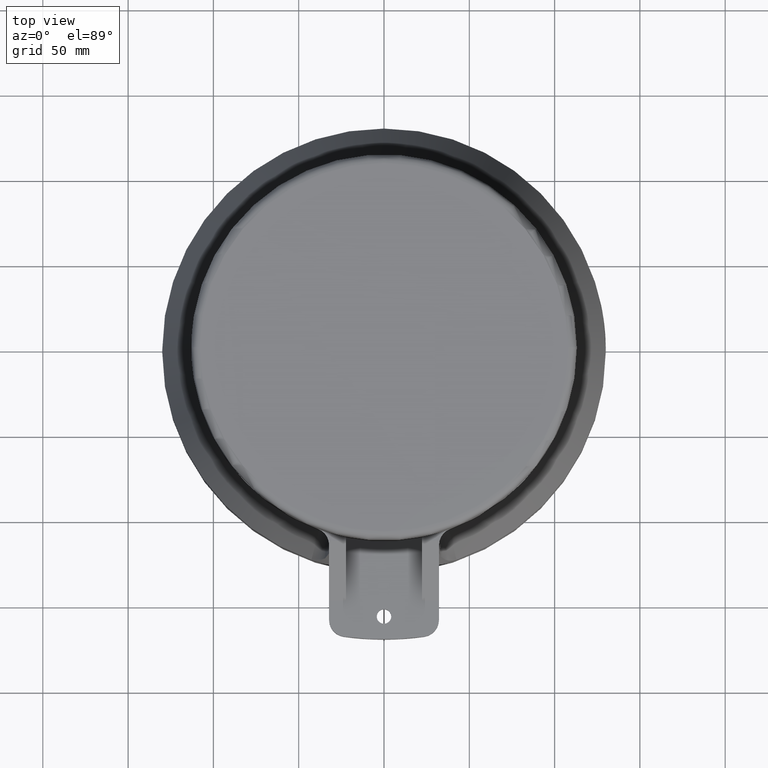
[diagram: clean part render]
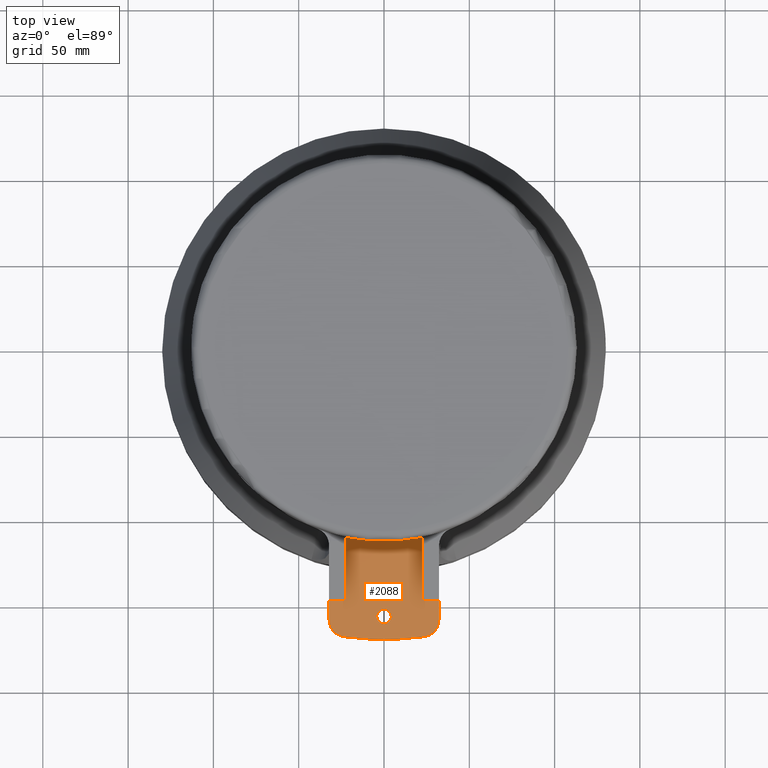
[diagram: same view with one face highlighted and labeled with its STEP entity id]
A machine part, top view. The second image highlights one B-rep face of the part: STEP entity #2088.
In plain terms, the highlighted planar face has unit normal (0, 0, -1).
Its self-contained STEP definition (entity closure, byte-faithful):
#674=CARTESIAN_POINT('',(0.E0,0.E0,-5.2E1));
#675=DIRECTION('',(0.E0,0.E0,1.E0));
#676=DIRECTION('',(-1.383440654598E-1,-9.903842282428E-1,0.E0));
#677=AXIS2_PLACEMENT_3D('',#674,#675,#676);
#705=CARTESIAN_POINT('',(-2.220422250630E1,-1.589566686330E2,-5.2E1));
#706=DIRECTION('',(0.E0,0.E0,1.E0));
#707=DIRECTION('',(-1.E0,0.E0,0.E0));
#708=AXIS2_PLACEMENT_3D('',#705,#706,#707);
#710=DIRECTION('',(0.E0,-1.E0,0.E0));
#711=VECTOR('',#710,1.131565248159E1);
#712=CARTESIAN_POINT('',(-3.220422250630E1,-1.476410161514E2,-5.2E1));
#713=LINE('',#712,#711);
#714=DIRECTION('',(-1.E0,0.E0,0.E0));
#715=VECTOR('',#714,1.E1);
#716=CARTESIAN_POINT('',(-2.220422250630E1,-1.476410161514E2,-5.2E1));
#717=LINE('',#716,#715);
#718=DIRECTION('',(1.E0,0.E0,0.E0));
#719=VECTOR('',#718,1.E1);
#720=CARTESIAN_POINT('',(2.220422250630E1,-1.476410161514E2,-5.2E1));
#721=LINE('',#720,#719);
#722=DIRECTION('',(0.E0,1.E0,0.E0));
#723=VECTOR('',#722,1.131565248159E1);
#724=CARTESIAN_POINT('',(3.220422250630E1,-1.589566686330E2,-5.2E1));
#725=LINE('',#724,#723);
#726=CARTESIAN_POINT('',(2.220422250630E1,-1.589566686330E2,-5.2E1));
#727=DIRECTION('',(0.E0,0.E0,1.E0));
#728=DIRECTION('',(1.383440654598E-1,-9.903842282428E-1,0.E0));
#729=AXIS2_PLACEMENT_3D('',#726,#727,#728);
#731=CARTESIAN_POINT('',(0.E0,-1.57E2,-5.2E1));
#732=DIRECTION('',(0.E0,0.E0,-1.E0));
#733=DIRECTION('',(-1.E0,0.E0,0.E0));
#734=AXIS2_PLACEMENT_3D('',#731,#732,#733);
#736=CARTESIAN_POINT('',(0.E0,-1.57E2,-5.2E1));
#737=DIRECTION('',(0.E0,0.E0,-1.E0));
#738=DIRECTION('',(1.E0,0.E0,0.E0));
#739=AXIS2_PLACEMENT_3D('',#736,#737,#738);
#905=CARTESIAN_POINT('',(0.E0,0.E0,-5.2E1));
#906=DIRECTION('',(0.E0,0.E0,1.E0));
#907=DIRECTION('',(-1.964975443036E-1,-9.805043167078E-1,0.E0));
#908=AXIS2_PLACEMENT_3D('',#905,#906,#907);
#1385=DIRECTION('',(0.E0,1.E0,0.E0));
#1386=VECTOR('',#1385,3.684402836339E1);
#1387=CARTESIAN_POINT('',(2.220422250630E1,-1.476410161514E2,-5.2E1));
#1388=LINE('',#1387,#1386);
#1411=DIRECTION('',(0.E0,-1.E0,0.E0));
#1412=VECTOR('',#1411,3.684402836339E1);
#1413=CARTESIAN_POINT('',(-2.220422250630E1,-1.107969877880E2,-5.2E1));
#1414=LINE('',#1413,#1412);
#1595=CARTESIAN_POINT('',(-2.220422250630E1,-1.476410161514E2,-5.2E1));
#1596=CARTESIAN_POINT('',(-3.220422250630E1,-1.476410161514E2,-5.2E1));
#1597=VERTEX_POINT('',#1595);
#1598=VERTEX_POINT('',#1596);
#1599=CARTESIAN_POINT('',(2.220422250630E1,-1.476410161514E2,-5.2E1));
#1600=CARTESIAN_POINT('',(3.220422250630E1,-1.476410161514E2,-5.2E1));
#1601=VERTEX_POINT('',#1599);
#1602=VERTEX_POINT('',#1600);
#1603=CARTESIAN_POINT('',(-2.220422250630E1,-1.107969877880E2,-5.2E1));
#1605=VERTEX_POINT('',#1603);
#1607=CARTESIAN_POINT('',(2.220422250630E1,-1.107969877880E2,-5.2E1));
#1609=VERTEX_POINT('',#1607);
#1656=CARTESIAN_POINT('',(-3.220422250630E1,-1.589566686330E2,-5.2E1));
#1657=VERTEX_POINT('',#1656);
#1658=CARTESIAN_POINT('',(-2.358766316090E1,-1.688605109154E2,-5.2E1));
#1659=VERTEX_POINT('',#1658);
#1660=CARTESIAN_POINT('',(2.358766316090E1,-1.688605109154E2,-5.2E1));
#1661=CARTESIAN_POINT('',(3.220422250630E1,-1.589566686330E2,-5.2E1));
#1662=VERTEX_POINT('',#1660);
#1663=VERTEX_POINT('',#1661);
#1680=CARTESIAN_POINT('',(-4.25E0,-1.57E2,-5.2E1));
#1681=CARTESIAN_POINT('',(4.25E0,-1.57E2,-5.2E1));
#1682=VERTEX_POINT('',#1680);
#1683=VERTEX_POINT('',#1681);
#2058=CARTESIAN_POINT('',(0.E0,0.E0,-5.2E1));
#2059=DIRECTION('',(0.E0,0.E0,-1.E0));
#2060=DIRECTION('',(-2.588190451025E-1,-9.659258262891E-1,0.E0));
#2061=AXIS2_PLACEMENT_3D('',#2058,#2059,#2060);
#2062=PLANE('',#2061);
#2064=ORIENTED_EDGE('',*,*,#2063,.F.);
#2065=ORIENTED_EDGE('',*,*,#1963,.F.);
#2067=ORIENTED_EDGE('',*,*,#2066,.F.);
#2069=ORIENTED_EDGE('',*,*,#2068,.F.);
#2071=ORIENTED_EDGE('',*,*,#2070,.T.);
#2073=ORIENTED_EDGE('',*,*,#2072,.F.);
#2075=ORIENTED_EDGE('',*,*,#2074,.T.);
#2077=ORIENTED_EDGE('',*,*,#2076,.F.);
#2079=ORIENTED_EDGE('',*,*,#2078,.F.);
#2080=ORIENTED_EDGE('',*,*,#2018,.F.);
#2081=EDGE_LOOP('',(#2064,#2065,#2067,#2069,#2071,#2073,#2075,#2077,#2079,
#2080));
#2082=FACE_OUTER_BOUND('',#2081,.F.);
#2083=ORIENTED_EDGE('',*,*,#2048,.F.);
#2085=ORIENTED_EDGE('',*,*,#2084,.F.);
#2086=EDGE_LOOP('',(#2083,#2085));
#2087=FACE_BOUND('',#2086,.F.);
#678=CIRCLE('',#677,1.705E2);
#709=CIRCLE('',#708,1.E1);
#730=CIRCLE('',#729,1.E1);
#735=CIRCLE('',#734,4.25E0);
#740=CIRCLE('',#739,4.25E0);
#909=CIRCLE('',#908,1.13E2);
#1963=EDGE_CURVE('',#1598,#1657,#713,.T.);
#2018=EDGE_CURVE('',#1659,#1662,#678,.T.);
#2048=EDGE_CURVE('',#1682,#1683,#735,.T.);
#2063=EDGE_CURVE('',#1657,#1659,#709,.T.);
#2066=EDGE_CURVE('',#1597,#1598,#717,.T.);
#2068=EDGE_CURVE('',#1605,#1597,#1414,.T.);
#2070=EDGE_CURVE('',#1605,#1609,#909,.T.);
#2072=EDGE_CURVE('',#1601,#1609,#1388,.T.);
#2074=EDGE_CURVE('',#1601,#1602,#721,.T.);
#2076=EDGE_CURVE('',#1663,#1602,#725,.T.);
#2078=EDGE_CURVE('',#1662,#1663,#730,.T.);
#2084=EDGE_CURVE('',#1683,#1682,#740,.T.);
#2088=ADVANCED_FACE('',(#2082,#2087),#2062,.F.);